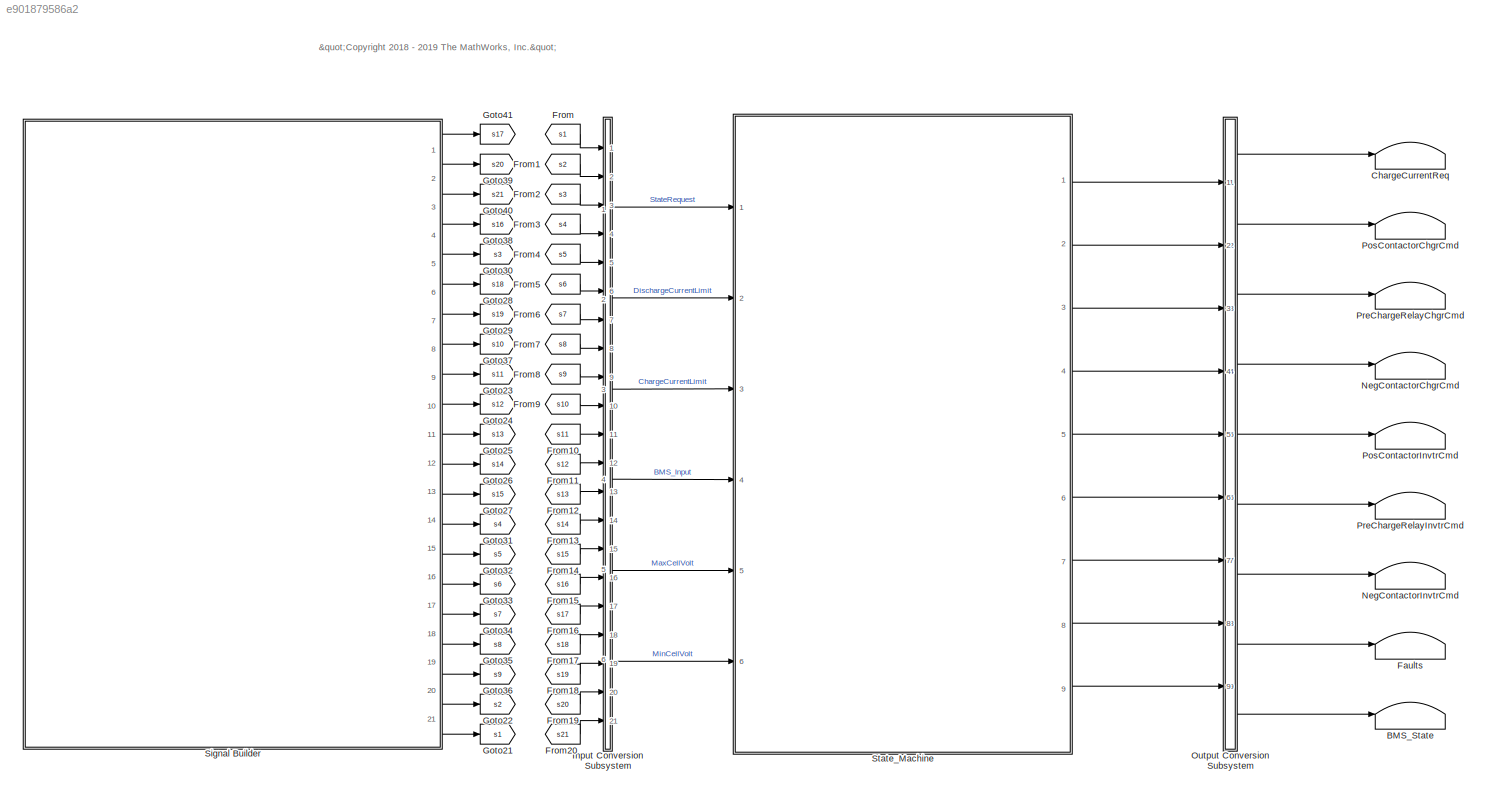
MODEL slx_e901879586a2
KIND model
CONFIG AbsTol = auto
CONFIG EnableMultiTasking = on
CONFIG FixedStep = auto
CONFIG MaxStep = auto
CONFIG MinStep = auto
CONFIG RelTol = 1e-3
CONFIG SampleTimeConstraint = Unconstrained
CONFIG SolverName = FixedStepDiscrete
CONFIG StartTime = 0.0
CONFIG StopTime = 85
BLOCK [Terminator] BMS_State
BLOCK [Terminator] ChargeCurrentReq
BLOCK [Terminator] Faults
BLOCK [From] From
  GotoTag = s1
BLOCK [From] From1
  GotoTag = s2
BLOCK [From] From10
  GotoTag = s11
BLOCK [From] From11
  GotoTag = s12
BLOCK [From] From12
  GotoTag = s13
BLOCK [From] From13
  GotoTag = s14
BLOCK [From] From14
  GotoTag = s15
BLOCK [From] From15
  GotoTag = s16
BLOCK [From] From16
  GotoTag = s17
BLOCK [From] From17
  GotoTag = s18
BLOCK [From] From18
  GotoTag = s19
BLOCK [From] From19
  GotoTag = s20
BLOCK [From] From2
  GotoTag = s3
BLOCK [From] From20
  GotoTag = s21
BLOCK [From] From3
  GotoTag = s4
BLOCK [From] From4
  GotoTag = s5
BLOCK [From] From5
  GotoTag = s6
BLOCK [From] From6
  GotoTag = s7
BLOCK [From] From7
  GotoTag = s8
BLOCK [From] From8
  GotoTag = s9
BLOCK [From] From9
  GotoTag = s10
BLOCK [Goto] Goto21
  GotoTag = s1
BLOCK [Goto] Goto22
  GotoTag = s2
BLOCK [Goto] Goto23
  GotoTag = s11
BLOCK [Goto] Goto24
  GotoTag = s12
BLOCK [Goto] Goto25
  GotoTag = s13
BLOCK [Goto] Goto26
  GotoTag = s14
BLOCK [Goto] Goto27
  GotoTag = s15
BLOCK [Goto] Goto28
  GotoTag = s18
BLOCK [Goto] Goto29
  GotoTag = s19
BLOCK [Goto] Goto30
  GotoTag = s3
BLOCK [Goto] Goto31
  GotoTag = s4
BLOCK [Goto] Goto32
  GotoTag = s5
BLOCK [Goto] Goto33
  GotoTag = s6
BLOCK [Goto] Goto34
  GotoTag = s7
BLOCK [Goto] Goto35
  GotoTag = s8
BLOCK [Goto] Goto36
  GotoTag = s9
BLOCK [Goto] Goto37
  GotoTag = s10
BLOCK [Goto] Goto38
  GotoTag = s16
BLOCK [Goto] Goto39
  GotoTag = s20
BLOCK [Goto] Goto40
  GotoTag = s21
BLOCK [Goto] Goto41
  GotoTag = s17
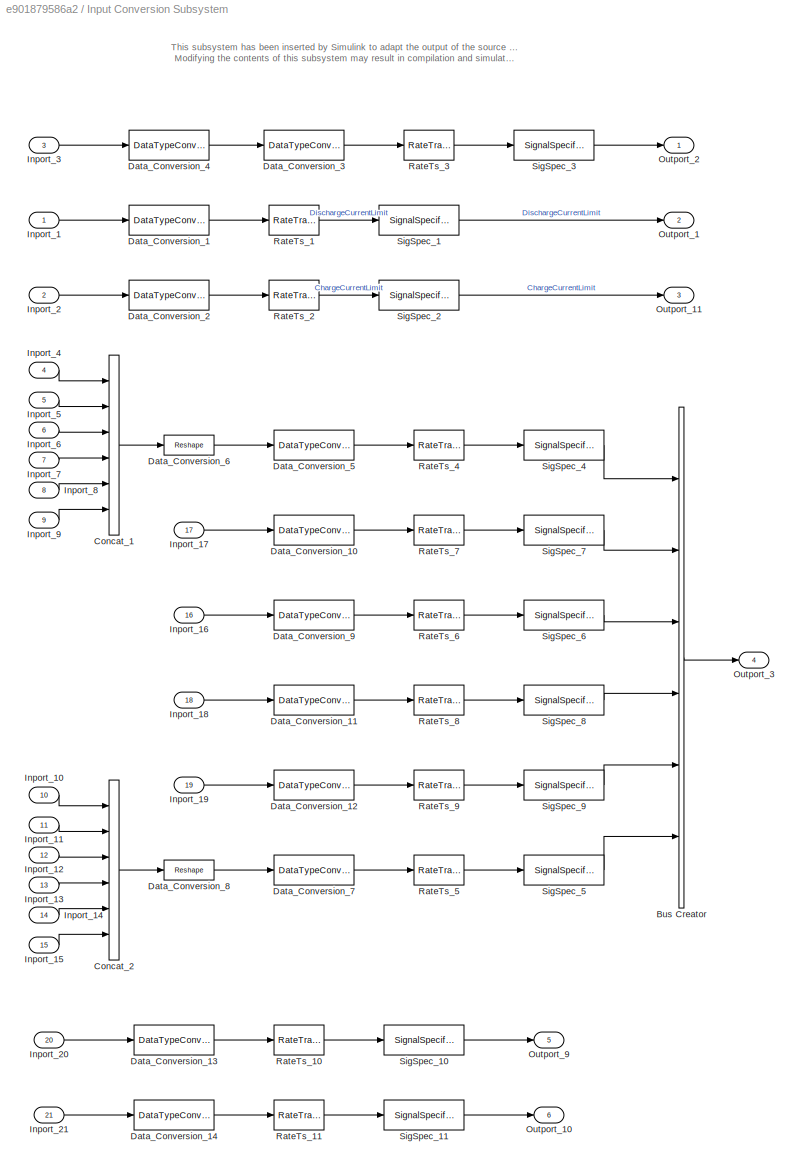
BLOCK [SubSystem] Input Conversion Subsystem
  AttributesFormatString = %<Description>
  Description = Signal spec.\nand routing
  Permissions = ReadOnly
  PermitHierarchicalResolution = ExplicitOnly
  Ports = [21, 6]
  RequestExecContextInheritance = off
  Tag = __SLT_ICS__
  UserDataPersistent = on
BLOCK [BusCreator] Input Conversion Subsystem/Bus Creator
  DisplayOption = bar
  InheritFromInputs = off
  Inputs = 6
  OutDataTypeStr = Bus: BMS_Input
  Ports = [6, 1]
BLOCK [Concatenate] Input Conversion Subsystem/Concat_1
  NumInputs = 6
  Ports = [6, 1]
BLOCK [Concatenate] Input Conversion Subsystem/Concat_2
  NumInputs = 6
  Ports = [6, 1]
BLOCK [DataTypeConversion] Input Conversion Subsystem/Data_Conversion_1
  OutDataTypeStr = single
BLOCK [DataTypeConversion] Input Conversion Subsystem/Data_Conversion_10
  OutDataTypeStr = single
BLOCK [DataTypeConversion] Input Conversion Subsystem/Data_Conversion_11
  OutDataTypeStr = single
BLOCK [DataTypeConversion] Input Conversion Subsystem/Data_Conversion_12
  OutDataTypeStr = single
BLOCK [DataTypeConversion] Input Conversion Subsystem/Data_Conversion_13
  OutDataTypeStr = single
BLOCK [DataTypeConversion] Input Conversion Subsystem/Data_Conversion_14
  OutDataTypeStr = single
BLOCK [DataTypeConversion] Input Conversion Subsystem/Data_Conversion_2
  OutDataTypeStr = single
BLOCK [DataTypeConversion] Input Conversion Subsystem/Data_Conversion_3
  OutDataTypeStr = Enum: SRE
BLOCK [DataTypeConversion] Input Conversion Subsystem/Data_Conversion_4
  OutDataTypeStr = int32
  RndMeth = Round
BLOCK [DataTypeConversion] Input Conversion Subsystem/Data_Conversion_5
  OutDataTypeStr = single
BLOCK [Reshape] Input Conversion Subsystem/Data_Conversion_6
  OutputDimensionality = Customize
  OutputDimensions = [6]
  Ports = [1, 1]
BLOCK [DataTypeConversion] Input Conversion Subsystem/Data_Conversion_7
  OutDataTypeStr = single
BLOCK [Reshape] Input Conversion Subsystem/Data_Conversion_8
  OutputDimensionality = Customize
  OutputDimensions = [6]
  Ports = [1, 1]
BLOCK [DataTypeConversion] Input Conversion Subsystem/Data_Conversion_9
  OutDataTypeStr = single
BLOCK [Inport] Input Conversion Subsystem/Inport_1
BLOCK [Inport] Input Conversion Subsystem/Inport_10
  Port = 10
BLOCK [Inport] Input Conversion Subsystem/Inport_11
  Port = 11
BLOCK [Inport] Input Conversion Subsystem/Inport_12
  Port = 12
BLOCK [Inport] Input Conversion Subsystem/Inport_13
  Port = 13
BLOCK [Inport] Input Conversion Subsystem/Inport_14
  Port = 14
BLOCK [Inport] Input Conversion Subsystem/Inport_15
  Port = 15
BLOCK [Inport] Input Conversion Subsystem/Inport_16
  Port = 16
BLOCK [Inport] Input Conversion Subsystem/Inport_17
  Port = 17
BLOCK [Inport] Input Conversion Subsystem/Inport_18
  Port = 18
BLOCK [Inport] Input Conversion Subsystem/Inport_19
  Port = 19
BLOCK [Inport] Input Conversion Subsystem/Inport_2
  Port = 2
BLOCK [Inport] Input Conversion Subsystem/Inport_20
  Port = 20
BLOCK [Inport] Input Conversion Subsystem/Inport_21
  Port = 21
BLOCK [Inport] Input Conversion Subsystem/Inport_3
  Port = 3
BLOCK [Inport] Input Conversion Subsystem/Inport_4
  Port = 4
BLOCK [Inport] Input Conversion Subsystem/Inport_5
  Port = 5
BLOCK [Inport] Input Conversion Subsystem/Inport_6
  Port = 6
BLOCK [Inport] Input Conversion Subsystem/Inport_7
  Port = 7
BLOCK [Inport] Input Conversion Subsystem/Inport_8
  Port = 8
BLOCK [Inport] Input Conversion Subsystem/Inport_9
  Port = 9
BLOCK [Outport] Input Conversion Subsystem/Outport_1
  Port = 2
  VectorParamsAs1DForOutWhenUnconnected = off
BLOCK [Outport] Input Conversion Subsystem/Outport_10
  Port = 6
  VectorParamsAs1DForOutWhenUnconnected = off
BLOCK [Outport] Input Conversion Subsystem/Outport_11
  Port = 3
  VectorParamsAs1DForOutWhenUnconnected = off
BLOCK [Outport] Input Conversion Subsystem/Outport_2
  VectorParamsAs1DForOutWhenUnconnected = off
BLOCK [Outport] Input Conversion Subsystem/Outport_3
  Port = 4
  VectorParamsAs1DForOutWhenUnconnected = off
BLOCK [Outport] Input Conversion Subsystem/Outport_9
  Port = 5
  VectorParamsAs1DForOutWhenUnconnected = off
BLOCK [RateTransition] Input Conversion Subsystem/RateTs_1
  OutPortSampleTime = 0.1
BLOCK [RateTransition] Input Conversion Subsystem/RateTs_10
  OutPortSampleTime = 0.1
BLOCK [RateTransition] Input Conversion Subsystem/RateTs_11
  OutPortSampleTime = 0.1
BLOCK [RateTransition] Input Conversion Subsystem/RateTs_2
  OutPortSampleTime = 0.1
BLOCK [RateTransition] Input Conversion Subsystem/RateTs_3
  OutPortSampleTime = 0.1
BLOCK [RateTransition] Input Conversion Subsystem/RateTs_4
  OutPortSampleTime = 0.1
BLOCK [RateTransition] Input Conversion Subsystem/RateTs_5
  OutPortSampleTime = 0.1
BLOCK [RateTransition] Input Conversion Subsystem/RateTs_6
  OutPortSampleTime = 0.1
BLOCK [RateTransition] Input Conversion Subsystem/RateTs_7
  OutPortSampleTime = 0.1
BLOCK [RateTransition] Input Conversion Subsystem/RateTs_8
  OutPortSampleTime = 0.1
BLOCK [RateTransition] Input Conversion Subsystem/RateTs_9
  OutPortSampleTime = 0.1
BLOCK [SignalSpecification] Input Conversion Subsystem/SigSpec_1
  Dimensions = [1]
  OutDataTypeStr = single
  SampleTime = 0.1
  SignalType = real
  VarSizeSig = No
BLOCK [SignalSpecification] Input Conversion Subsystem/SigSpec_10
  Dimensions = [1]
  OutDataTypeStr = single
  SampleTime = 0.1
  SignalType = real
  VarSizeSig = No
BLOCK [SignalSpecification] Input Conversion Subsystem/SigSpec_11
  Dimensions = [1]
  OutDataTypeStr = single
  SampleTime = 0.1
  SignalType = real
  VarSizeSig = No
BLOCK [SignalSpecification] Input Conversion Subsystem/SigSpec_2
  Dimensions = [1]
  OutDataTypeStr = single
  SampleTime = 0.1
  SignalType = real
  VarSizeSig = No
BLOCK [SignalSpecification] Input Conversion Subsystem/SigSpec_3
  Dimensions = [1]
  OutDataTypeStr = Enum: SRE
  SampleTime = 0.1
  SignalType = real
  VarSizeSig = No
BLOCK [SignalSpecification] Input Conversion Subsystem/SigSpec_4
  Dimensions = [6]
  OutDataTypeStr = single
  SampleTime = 0.1
  SignalType = real
  VarSizeSig = No
BLOCK [SignalSpecification] Input Conversion Subsystem/SigSpec_5
  Dimensions = [6]
  OutDataTypeStr = single
  SampleTime = 0.1
  SignalType = real
  VarSizeSig = No
BLOCK [SignalSpecification] Input Conversion Subsystem/SigSpec_6
  Dimensions = [1]
  OutDataTypeStr = single
  SampleTime = 0.1
  SignalType = real
  VarSizeSig = No
BLOCK [SignalSpecification] Input Conversion Subsystem/SigSpec_7
  Dimensions = [1]
  OutDataTypeStr = single
  SampleTime = 0.1
  SignalType = real
  VarSizeSig = No
BLOCK [SignalSpecification] Input Conversion Subsystem/SigSpec_8
  Dimensions = [1]
  OutDataTypeStr = single
  SampleTime = 0.1
  SignalType = real
  VarSizeSig = No
BLOCK [SignalSpecification] Input Conversion Subsystem/SigSpec_9
  Dimensions = [1]
  OutDataTypeStr = single
  SampleTime = 0.1
  SignalType = real
  VarSizeSig = No
BLOCK [Terminator] NegContactorChgrCmd
BLOCK [Terminator] NegContactorInvtrCmd
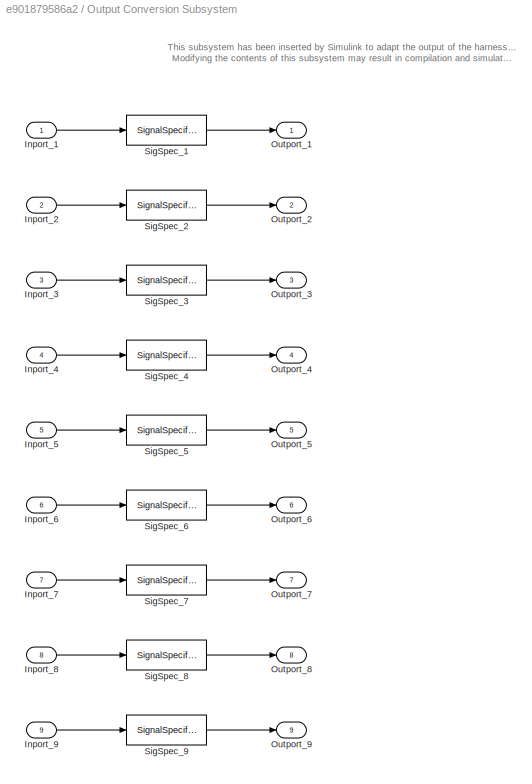
BLOCK [SubSystem] Output Conversion Subsystem
  AttributesFormatString = %<Description>
  Description = Signal spec.\nand routing
  Permissions = ReadOnly
  PermitHierarchicalResolution = ExplicitOnly
  Ports = [9, 9]
  RequestExecContextInheritance = off
  Tag = __SLT_OCS__
  UserDataPersistent = on
BLOCK [Inport] Output Conversion Subsystem/Inport_1
BLOCK [Inport] Output Conversion Subsystem/Inport_2
  Port = 2
BLOCK [Inport] Output Conversion Subsystem/Inport_3
  Port = 3
BLOCK [Inport] Output Conversion Subsystem/Inport_4
  Port = 4
BLOCK [Inport] Output Conversion Subsystem/Inport_5
  Port = 5
BLOCK [Inport] Output Conversion Subsystem/Inport_6
  Port = 6
BLOCK [Inport] Output Conversion Subsystem/Inport_7
  Port = 7
BLOCK [Inport] Output Conversion Subsystem/Inport_8
  Port = 8
BLOCK [Inport] Output Conversion Subsystem/Inport_9
  Port = 9
BLOCK [Outport] Output Conversion Subsystem/Outport_1
  VectorParamsAs1DForOutWhenUnconnected = off
BLOCK [Outport] Output Conversion Subsystem/Outport_2
  Port = 2
  VectorParamsAs1DForOutWhenUnconnected = off
BLOCK [Outport] Output Conversion Subsystem/Outport_3
  Port = 3
  VectorParamsAs1DForOutWhenUnconnected = off
BLOCK [Outport] Output Conversion Subsystem/Outport_4
  Port = 4
  VectorParamsAs1DForOutWhenUnconnected = off
BLOCK [Outport] Output Conversion Subsystem/Outport_5
  Port = 5
  VectorParamsAs1DForOutWhenUnconnected = off
BLOCK [Outport] Output Conversion Subsystem/Outport_6
  Port = 6
  VectorParamsAs1DForOutWhenUnconnected = off
BLOCK [Outport] Output Conversion Subsystem/Outport_7
  Port = 7
  VectorParamsAs1DForOutWhenUnconnected = off
BLOCK [Outport] Output Conversion Subsystem/Outport_8
  Port = 8
  VectorParamsAs1DForOutWhenUnconnected = off
BLOCK [Outport] Output Conversion Subsystem/Outport_9
  Port = 9
  VectorParamsAs1DForOutWhenUnconnected = off
BLOCK [SignalSpecification] Output Conversion Subsystem/SigSpec_1
  Dimensions = [1]
  OutDataTypeStr = single
  SampleTime = 0.1
  SignalType = real
  VarSizeSig = No
BLOCK [SignalSpecification] Output Conversion Subsystem/SigSpec_2
  Dimensions = [1]
  OutDataTypeStr = boolean
  SampleTime = 0.1
  SignalType = real
  VarSizeSig = No
BLOCK [SignalSpecification] Output Conversion Subsystem/SigSpec_3
  Dimensions = [1]
  OutDataTypeStr = boolean
  SampleTime = 0.1
  SignalType = real
  VarSizeSig = No
BLOCK [SignalSpecification] Output Conversion Subsystem/SigSpec_4
  Dimensions = [1]
  OutDataTypeStr = boolean
  SampleTime = 0.1
  SignalType = real
  VarSizeSig = No
BLOCK [SignalSpecification] Output Conversion Subsystem/SigSpec_5
  Dimensions = [1]
  OutDataTypeStr = boolean
  SampleTime = 0.1
  SignalType = real
  VarSizeSig = No
BLOCK [SignalSpecification] Output Conversion Subsystem/SigSpec_6
  Dimensions = [1]
  OutDataTypeStr = boolean
  SampleTime = 0.1
  SignalType = real
  VarSizeSig = No
BLOCK [SignalSpecification] Output Conversion Subsystem/SigSpec_7
  Dimensions = [1]
  OutDataTypeStr = boolean
  SampleTime = 0.1
  SignalType = real
  VarSizeSig = No
BLOCK [SignalSpecification] Output Conversion Subsystem/SigSpec_8
  BusOutputAsStruct = on
  Dimensions = [1]
  OutDataTypeStr = Bus: Faults
  SampleTime = 0.1
  SignalType = real
  VarSizeSig = No
BLOCK [SignalSpecification] Output Conversion Subsystem/SigSpec_9
  Dimensions = [1]
  OutDataTypeStr = Enum: BMS_State_Enum
  SampleTime = 0.1
  SignalType = real
  VarSizeSig = No
BLOCK [Terminator] PosContactorChgrCmd
BLOCK [Terminator] PosContactorInvtrCmd
BLOCK [Terminator] PreChargeRelayChgrCmd
BLOCK [Terminator] PreChargeRelayInvtrCmd
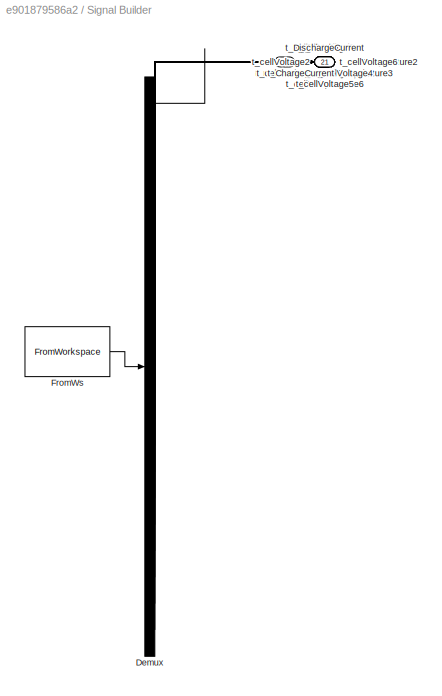
BLOCK [SubSystem] Signal Builder
  ClipboardFcn = sigbuilder_block('clipboard');
  CloseFcn = sigbuilder_block('close');
  ContinueFcn = sigbuilder_block('continue');
  CopyFcn = sigbuilder_block('copy');
  DeleteFcn = sigbuilder_block('delete');
  LoadFcn = sigbuilder_block('load');
  MaskHideContents = on
  ModelCloseFcn = sigbuilder_block('modelClose');
  NameChangeFcn = sigbuilder_block('namechange');
  OpenFcn = sigbuilder_block('open',[1962.75 -162.75 1043.25 773.25 ]);
  PauseFcn = sigbuilder_block('pause');
  Ports = [0, 21]
  PreSaveFcn = sigbuilder_block('preSave');
  RequestExecContextInheritance = off
  StartFcn = sigbuilder_block('start');
  StopFcn = sigbuilder_block('stop');
  Tag = STV Subsys
BLOCK [Demux] Signal Builder/Demux
  DisplayOption = none
  Outputs = 21
  Ports = [1, 21]
  Tag = STV Demux
BLOCK [FromWorkspace] Signal Builder/FromWs
  Tag = STV FromWs
  VariableName = tuvar
BLOCK [Outport] Signal Builder/t_ChargeCurrent
  Port = 20
  Tag = STV Outport
  VectorParamsAs1DForOutWhenUnconnected = off
BLOCK [Outport] Signal Builder/t_DischargeCurrent
  Port = 21
  Tag = STV Outport
  VectorParamsAs1DForOutWhenUnconnected = off
BLOCK [Outport] Signal Builder/t_cellTemperature1
  Port = 8
  Tag = STV Outport
  VectorParamsAs1DForOutWhenUnconnected = off
BLOCK [Outport] Signal Builder/t_cellTemperature2
  Port = 9
  Tag = STV Outport
  VectorParamsAs1DForOutWhenUnconnected = off
BLOCK [Outport] Signal Builder/t_cellTemperature3
  Port = 10
  Tag = STV Outport
  VectorParamsAs1DForOutWhenUnconnected = off
BLOCK [Outport] Signal Builder/t_cellTemperature4
  Port = 11
  Tag = STV Outport
  VectorParamsAs1DForOutWhenUnconnected = off
BLOCK [Outport] Signal Builder/t_cellTemperature5
  Port = 12
  Tag = STV Outport
  VectorParamsAs1DForOutWhenUnconnected = off
BLOCK [Outport] Signal Builder/t_cellTemperature6
  Port = 13
  Tag = STV Outport
  VectorParamsAs1DForOutWhenUnconnected = off
BLOCK [Outport] Signal Builder/t_cellVoltage1
  Port = 14
  Tag = STV Outport
  VectorParamsAs1DForOutWhenUnconnected = off
BLOCK [Outport] Signal Builder/t_cellVoltage2
  Port = 15
  Tag = STV Outport
  VectorParamsAs1DForOutWhenUnconnected = off
BLOCK [Outport] Signal Builder/t_cellVoltage3
  Port = 16
  Tag = STV Outport
  VectorParamsAs1DForOutWhenUnconnected = off
BLOCK [Outport] Signal Builder/t_cellVoltage4
  Port = 17
  Tag = STV Outport
  VectorParamsAs1DForOutWhenUnconnected = off
BLOCK [Outport] Signal Builder/t_cellVoltage5
  Port = 18
  Tag = STV Outport
  VectorParamsAs1DForOutWhenUnconnected = off
BLOCK [Outport] Signal Builder/t_cellVoltage6
  Port = 19
  Tag = STV Outport
  VectorParamsAs1DForOutWhenUnconnected = off
BLOCK [Outport] Signal Builder/t_maxCellVolt
  Port = 2
  Tag = STV Outport
  VectorParamsAs1DForOutWhenUnconnected = off
BLOCK [Outport] Signal Builder/t_minCellVolt
  Port = 3
  Tag = STV Outport
  VectorParamsAs1DForOutWhenUnconnected = off
BLOCK [Outport] Signal Builder/t_packCurrent
  Port = 4
  Tag = STV Outport
  VectorParamsAs1DForOutWhenUnconnected = off
BLOCK [Outport] Signal Builder/t_packVoltage
  Tag = STV Outport
  VectorParamsAs1DForOutWhenUnconnected = off
BLOCK [Outport] Signal Builder/t_stateRequest
  Port = 5
  Tag = STV Outport
  VectorParamsAs1DForOutWhenUnconnected = off
BLOCK [Outport] Signal Builder/t_voutChgr
  Port = 6
  Tag = STV Outport
  VectorParamsAs1DForOutWhenUnconnected = off
BLOCK [Outport] Signal Builder/t_voutInvtr
  Port = 7
  Tag = STV Outport
  VectorParamsAs1DForOutWhenUnconnected = off
BLOCK [ModelReference] State_Machine
  ModelNameDialog = State_Machine
  ModelReferenceVersion = 1.671
  Ports = [6, 9]
ANNOTATION (root): "<copyright redacted>
ANNOTATION Input Conversion Subsystem: This subsystem has been inserted by Simulink to adapt the output of the source blocks to the interface required by the harnessed component. Modifying the contents of this subsystem may result in compilation and simulation failure.
ANNOTATION Output Conversion Subsystem: This subsystem has been inserted by Simulink to adapt the output of the harnessed component to the interface required by the sink blocks. Modifying the contents of this subsystem may result in compilation and simulation failure.
LINE From10:1 -> Input Conversion Subsystem:11
LINE From11:1 -> Input Conversion Subsystem:12
LINE From12:1 -> Input Conversion Subsystem:13
LINE From13:1 -> Input Conversion Subsystem:14
LINE From14:1 -> Input Conversion Subsystem:15
LINE From15:1 -> Input Conversion Subsystem:16
LINE From16:1 -> Input Conversion Subsystem:17
LINE From17:1 -> Input Conversion Subsystem:18
LINE From18:1 -> Input Conversion Subsystem:19
LINE From19:1 -> Input Conversion Subsystem:20
LINE From1:1 -> Input Conversion Subsystem:2
LINE From20:1 -> Input Conversion Subsystem:21
LINE From2:1 -> Input Conversion Subsystem:3
LINE From3:1 -> Input Conversion Subsystem:4
LINE From4:1 -> Input Conversion Subsystem:5
LINE From5:1 -> Input Conversion Subsystem:6
LINE From6:1 -> Input Conversion Subsystem:7
LINE From7:1 -> Input Conversion Subsystem:8
LINE From8:1 -> Input Conversion Subsystem:9
LINE From9:1 -> Input Conversion Subsystem:10
LINE From:1 -> Input Conversion Subsystem:1
LINE Input Conversion Subsystem/Bus Creator:1 -> Input Conversion Subsystem/Outport_3:1
LINE Input Conversion Subsystem/Concat_1:1 -> Input Conversion Subsystem/Data_Conversion_6:1
LINE Input Conversion Subsystem/Concat_2:1 -> Input Conversion Subsystem/Data_Conversion_8:1
LINE Input Conversion Subsystem/Data_Conversion_10:1 -> Input Conversion Subsystem/RateTs_7:1
LINE Input Conversion Subsystem/Data_Conversion_11:1 -> Input Conversion Subsystem/RateTs_8:1
LINE Input Conversion Subsystem/Data_Conversion_12:1 -> Input Conversion Subsystem/RateTs_9:1
LINE Input Conversion Subsystem/Data_Conversion_13:1 -> Input Conversion Subsystem/RateTs_10:1
LINE Input Conversion Subsystem/Data_Conversion_14:1 -> Input Conversion Subsystem/RateTs_11:1
LINE Input Conversion Subsystem/Data_Conversion_1:1 -> Input Conversion Subsystem/RateTs_1:1
LINE Input Conversion Subsystem/Data_Conversion_2:1 -> Input Conversion Subsystem/RateTs_2:1
LINE Input Conversion Subsystem/Data_Conversion_3:1 -> Input Conversion Subsystem/RateTs_3:1
LINE Input Conversion Subsystem/Data_Conversion_4:1 -> Input Conversion Subsystem/Data_Conversion_3:1
LINE Input Conversion Subsystem/Data_Conversion_5:1 -> Input Conversion Subsystem/RateTs_4:1
LINE Input Conversion Subsystem/Data_Conversion_6:1 -> Input Conversion Subsystem/Data_Conversion_5:1
LINE Input Conversion Subsystem/Data_Conversion_7:1 -> Input Conversion Subsystem/RateTs_5:1
LINE Input Conversion Subsystem/Data_Conversion_8:1 -> Input Conversion Subsystem/Data_Conversion_7:1
LINE Input Conversion Subsystem/Data_Conversion_9:1 -> Input Conversion Subsystem/RateTs_6:1
LINE Input Conversion Subsystem/Inport_10:1 -> Input Conversion Subsystem/Concat_2:1
LINE Input Conversion Subsystem/Inport_11:1 -> Input Conversion Subsystem/Concat_2:2
LINE Input Conversion Subsystem/Inport_12:1 -> Input Conversion Subsystem/Concat_2:3
LINE Input Conversion Subsystem/Inport_13:1 -> Input Conversion Subsystem/Concat_2:4
LINE Input Conversion Subsystem/Inport_14:1 -> Input Conversion Subsystem/Concat_2:5
LINE Input Conversion Subsystem/Inport_15:1 -> Input Conversion Subsystem/Concat_2:6
LINE Input Conversion Subsystem/Inport_16:1 -> Input Conversion Subsystem/Data_Conversion_9:1
LINE Input Conversion Subsystem/Inport_17:1 -> Input Conversion Subsystem/Data_Conversion_10:1
LINE Input Conversion Subsystem/Inport_18:1 -> Input Conversion Subsystem/Data_Conversion_11:1
LINE Input Conversion Subsystem/Inport_19:1 -> Input Conversion Subsystem/Data_Conversion_12:1
LINE Input Conversion Subsystem/Inport_1:1 -> Input Conversion Subsystem/Data_Conversion_1:1
LINE Input Conversion Subsystem/Inport_20:1 -> Input Conversion Subsystem/Data_Conversion_13:1
LINE Input Conversion Subsystem/Inport_21:1 -> Input Conversion Subsystem/Data_Conversion_14:1
LINE Input Conversion Subsystem/Inport_2:1 -> Input Conversion Subsystem/Data_Conversion_2:1
LINE Input Conversion Subsystem/Inport_3:1 -> Input Conversion Subsystem/Data_Conversion_4:1
LINE Input Conversion Subsystem/Inport_4:1 -> Input Conversion Subsystem/Concat_1:1
LINE Input Conversion Subsystem/Inport_5:1 -> Input Conversion Subsystem/Concat_1:2
LINE Input Conversion Subsystem/Inport_6:1 -> Input Conversion Subsystem/Concat_1:3
LINE Input Conversion Subsystem/Inport_7:1 -> Input Conversion Subsystem/Concat_1:4
LINE Input Conversion Subsystem/Inport_8:1 -> Input Conversion Subsystem/Concat_1:5
LINE Input Conversion Subsystem/Inport_9:1 -> Input Conversion Subsystem/Concat_1:6
LINE Input Conversion Subsystem/RateTs_10:1 -> Input Conversion Subsystem/SigSpec_10:1
LINE Input Conversion Subsystem/RateTs_11:1 -> Input Conversion Subsystem/SigSpec_11:1
LINE Input Conversion Subsystem/RateTs_1:1 -> Input Conversion Subsystem/SigSpec_1:1
LINE Input Conversion Subsystem/RateTs_2:1 -> Input Conversion Subsystem/SigSpec_2:1
LINE Input Conversion Subsystem/RateTs_3:1 -> Input Conversion Subsystem/SigSpec_3:1
LINE Input Conversion Subsystem/RateTs_4:1 -> Input Conversion Subsystem/SigSpec_4:1
LINE Input Conversion Subsystem/RateTs_5:1 -> Input Conversion Subsystem/SigSpec_5:1
LINE Input Conversion Subsystem/RateTs_6:1 -> Input Conversion Subsystem/SigSpec_6:1
LINE Input Conversion Subsystem/RateTs_7:1 -> Input Conversion Subsystem/SigSpec_7:1
LINE Input Conversion Subsystem/RateTs_8:1 -> Input Conversion Subsystem/SigSpec_8:1
LINE Input Conversion Subsystem/RateTs_9:1 -> Input Conversion Subsystem/SigSpec_9:1
LINE Input Conversion Subsystem/SigSpec_10:1 -> Input Conversion Subsystem/Outport_9:1
LINE Input Conversion Subsystem/SigSpec_11:1 -> Input Conversion Subsystem/Outport_10:1
LINE Input Conversion Subsystem/SigSpec_1:1 -> Input Conversion Subsystem/Outport_1:1
LINE Input Conversion Subsystem/SigSpec_2:1 -> Input Conversion Subsystem/Outport_11:1
LINE Input Conversion Subsystem/SigSpec_3:1 -> Input Conversion Subsystem/Outport_2:1
LINE Input Conversion Subsystem/SigSpec_4:1 -> Input Conversion Subsystem/Bus Creator:1
LINE Input Conversion Subsystem/SigSpec_5:1 -> Input Conversion Subsystem/Bus Creator:6
LINE Input Conversion Subsystem/SigSpec_6:1 -> Input Conversion Subsystem/Bus Creator:3
LINE Input Conversion Subsystem/SigSpec_7:1 -> Input Conversion Subsystem/Bus Creator:2
LINE Input Conversion Subsystem/SigSpec_8:1 -> Input Conversion Subsystem/Bus Creator:4
LINE Input Conversion Subsystem/SigSpec_9:1 -> Input Conversion Subsystem/Bus Creator:5
LINE Input Conversion Subsystem:1 -> State_Machine:1
LINE Input Conversion Subsystem:2 -> State_Machine:2
LINE Input Conversion Subsystem:3 -> State_Machine:3
LINE Input Conversion Subsystem:4 -> State_Machine:4
LINE Input Conversion Subsystem:5 -> State_Machine:5
LINE Input Conversion Subsystem:6 -> State_Machine:6
LINE Output Conversion Subsystem/Inport_1:1 -> Output Conversion Subsystem/SigSpec_1:1
LINE Output Conversion Subsystem/Inport_2:1 -> Output Conversion Subsystem/SigSpec_2:1
LINE Output Conversion Subsystem/Inport_3:1 -> Output Conversion Subsystem/SigSpec_3:1
LINE Output Conversion Subsystem/Inport_4:1 -> Output Conversion Subsystem/SigSpec_4:1
LINE Output Conversion Subsystem/Inport_5:1 -> Output Conversion Subsystem/SigSpec_5:1
LINE Output Conversion Subsystem/Inport_6:1 -> Output Conversion Subsystem/SigSpec_6:1
LINE Output Conversion Subsystem/Inport_7:1 -> Output Conversion Subsystem/SigSpec_7:1
LINE Output Conversion Subsystem/Inport_8:1 -> Output Conversion Subsystem/SigSpec_8:1
LINE Output Conversion Subsystem/Inport_9:1 -> Output Conversion Subsystem/SigSpec_9:1
LINE Output Conversion Subsystem/SigSpec_1:1 -> Output Conversion Subsystem/Outport_1:1
LINE Output Conversion Subsystem/SigSpec_2:1 -> Output Conversion Subsystem/Outport_2:1
LINE Output Conversion Subsystem/SigSpec_3:1 -> Output Conversion Subsystem/Outport_3:1
LINE Output Conversion Subsystem/SigSpec_4:1 -> Output Conversion Subsystem/Outport_4:1
LINE Output Conversion Subsystem/SigSpec_5:1 -> Output Conversion Subsystem/Outport_5:1
LINE Output Conversion Subsystem/SigSpec_6:1 -> Output Conversion Subsystem/Outport_6:1
LINE Output Conversion Subsystem/SigSpec_7:1 -> Output Conversion Subsystem/Outport_7:1
LINE Output Conversion Subsystem/SigSpec_8:1 -> Output Conversion Subsystem/Outport_8:1
LINE Output Conversion Subsystem/SigSpec_9:1 -> Output Conversion Subsystem/Outport_9:1
LINE Output Conversion Subsystem:1 -> ChargeCurrentReq:1
LINE Output Conversion Subsystem:2 -> PosContactorChgrCmd:1
LINE Output Conversion Subsystem:3 -> PreChargeRelayChgrCmd:1
LINE Output Conversion Subsystem:4 -> NegContactorChgrCmd:1
LINE Output Conversion Subsystem:5 -> PosContactorInvtrCmd:1
LINE Output Conversion Subsystem:6 -> PreChargeRelayInvtrCmd:1
LINE Output Conversion Subsystem:7 -> NegContactorInvtrCmd:1
LINE Output Conversion Subsystem:8 -> Faults:1
LINE Output Conversion Subsystem:9 -> BMS_State:1
LINE Signal Builder:1 -> Goto41:1
LINE Signal Builder:10 -> Goto24:1
LINE Signal Builder:11 -> Goto25:1
LINE Signal Builder:12 -> Goto26:1
LINE Signal Builder:13 -> Goto27:1
LINE Signal Builder:14 -> Goto31:1
LINE Signal Builder:15 -> Goto32:1
LINE Signal Builder:16 -> Goto33:1
LINE Signal Builder:17 -> Goto34:1
LINE Signal Builder:18 -> Goto35:1
LINE Signal Builder:19 -> Goto36:1
LINE Signal Builder:2 -> Goto39:1
LINE Signal Builder:20 -> Goto22:1
LINE Signal Builder:21 -> Goto21:1
LINE Signal Builder:3 -> Goto40:1
LINE Signal Builder:4 -> Goto38:1
LINE Signal Builder:5 -> Goto30:1
LINE Signal Builder:6 -> Goto28:1
LINE Signal Builder:7 -> Goto29:1
LINE Signal Builder:8 -> Goto37:1
LINE Signal Builder:9 -> Goto23:1
LINE State_Machine:1 -> Output Conversion Subsystem:1
LINE State_Machine:2 -> Output Conversion Subsystem:2
LINE State_Machine:3 -> Output Conversion Subsystem:3
LINE State_Machine:4 -> Output Conversion Subsystem:4
LINE State_Machine:5 -> Output Conversion Subsystem:5
LINE State_Machine:6 -> Output Conversion Subsystem:6
LINE State_Machine:7 -> Output Conversion Subsystem:7
LINE State_Machine:8 -> Output Conversion Subsystem:8
LINE State_Machine:9 -> Output Conversion Subsystem:9
